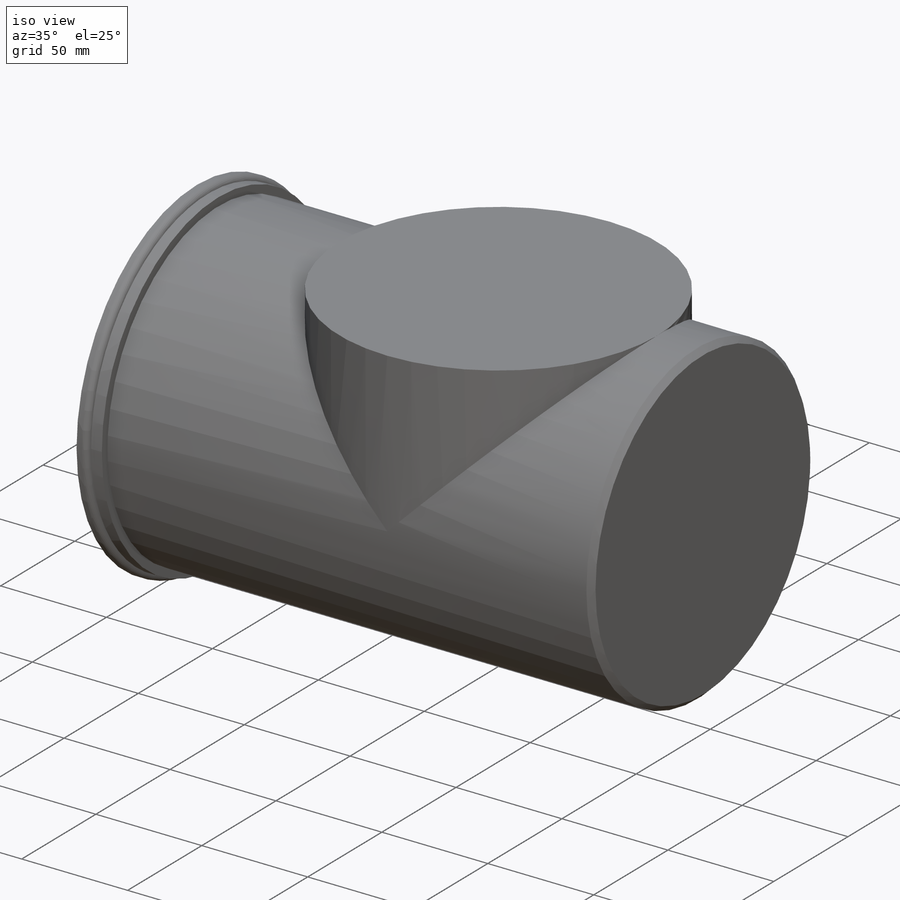
[diagram: iso view]
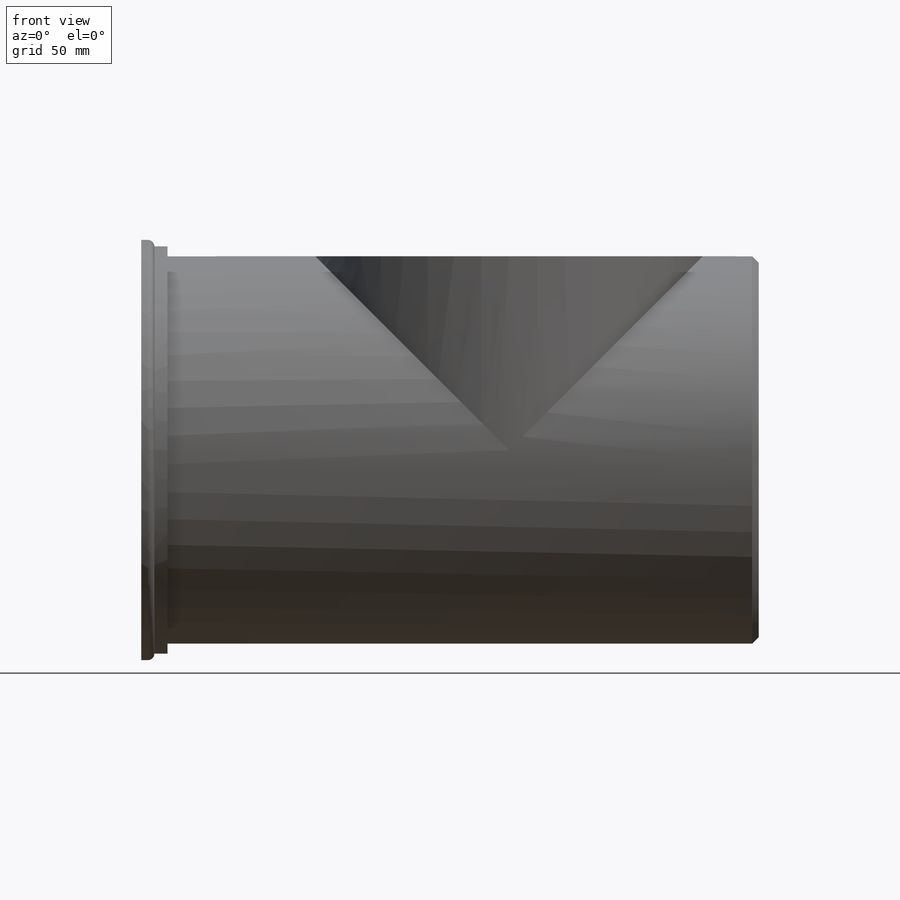
[diagram: front view]
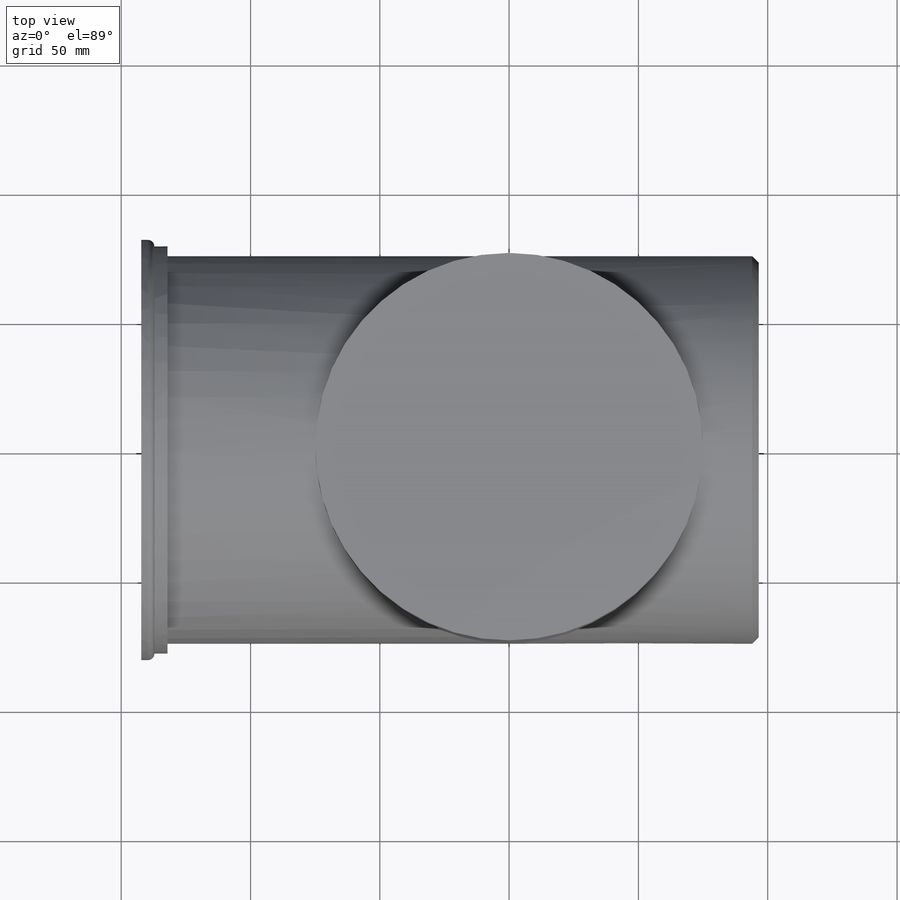
[diagram: top view]
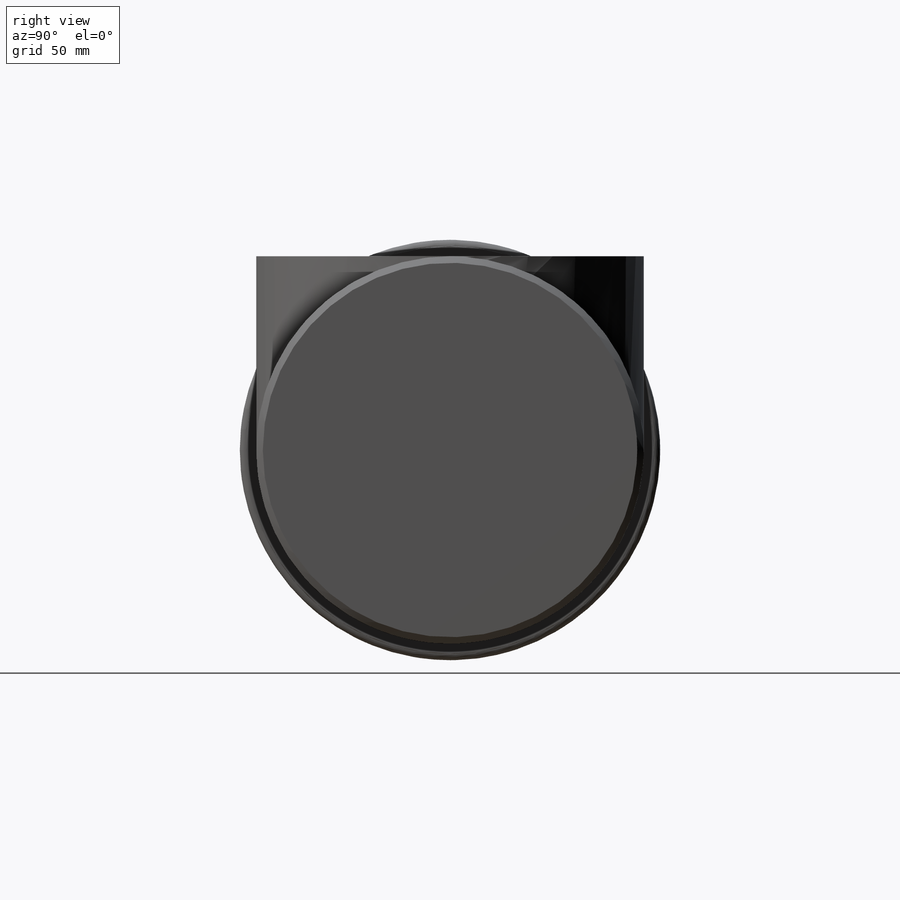
[diagram: right view]
SOLIDWORKS PART (.sldprt)
format: sldprt  version: not decoded by parser v0  size: 190,976 bytes
history: native  units: mm
features: plane x4, sketch x4, extrude x4, material x1, fillet x1, chamfer x1 (+8 scaffold rows collapsed)
feature tree (23):
  scaffold x8  (default folders/planes/origin — collapsed)
  material  "Material <sin especificar>"
  plane  "Alzado"
  plane  "Planta"
  plane  "Vista lateral"
  sketch  "Croquis3"  dims[D1=149.86mm]
  extrude  "Saliente-Extruir3"  Depth=96.52mm
  plane  "Plano1"  Offset=74.93mm
  sketch  "Croquis4"
  extrude  "Saliente-Extruir4"  [1 undecoded]
  sketch  "Croquis5"  dims[D1=157.48mm]
  extrude  "Saliente-Extruir5"  Depth=5.08mm
  sketch  "Croquis6"  dims[D1=162.56mm]
  extrude  "Saliente-Extruir6"  Depth=5.08mm
  fillet  "Redondeo1"  Radius=2.54mm
  chamfer  "Chaflán1"  Distance=2.54mm Angle=45deg
decode coverage: 8 of 10 modeling features carry decoded parameters
note: 1 parameter value undecoded
note: suppression state not decoded; provenance and decode notes live in map.json
